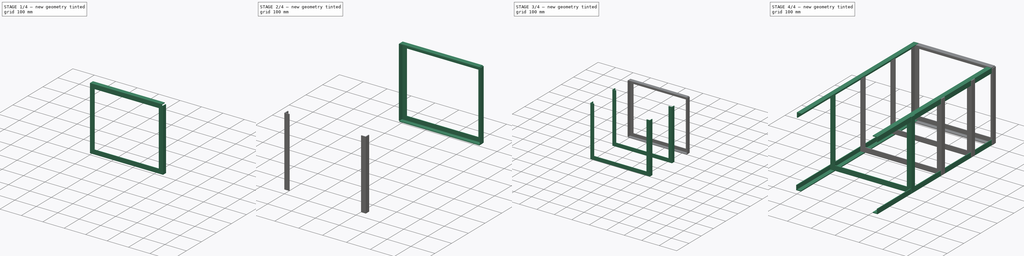
[diagram: build sequence overview — one tinted view per stage of 4, left to right]
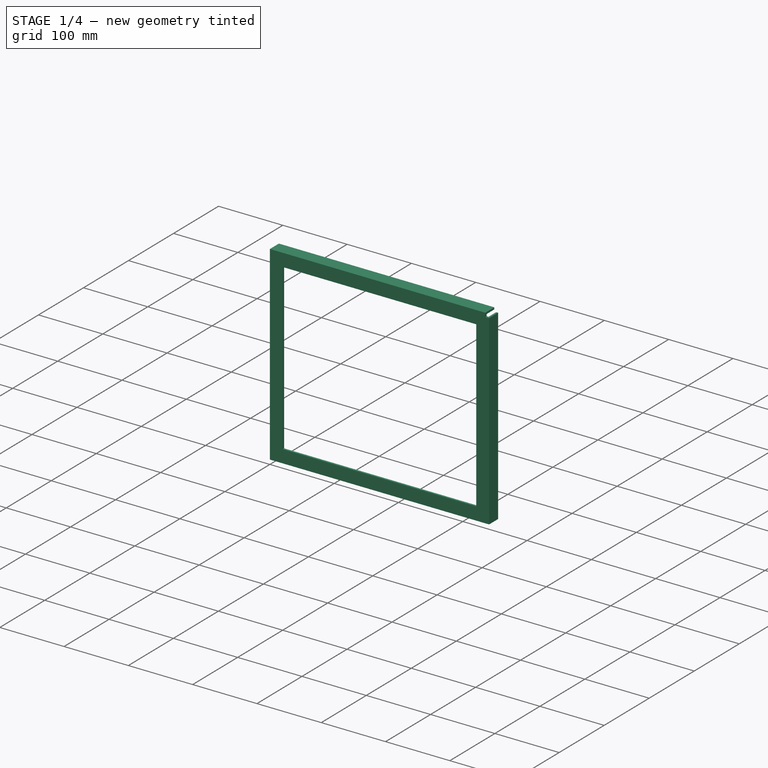
[diagram: stage 1 of 4 — iso view after this stage's code; geometry added in this stage tinted green]
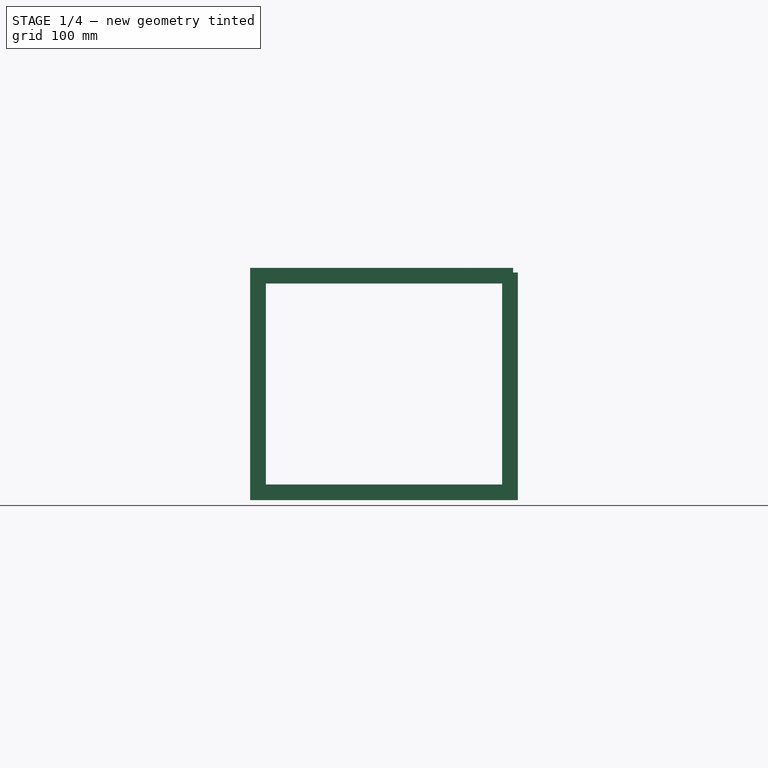
[diagram: stage 1 of 4 — front view after this stage's code; geometry added in this stage tinted green]
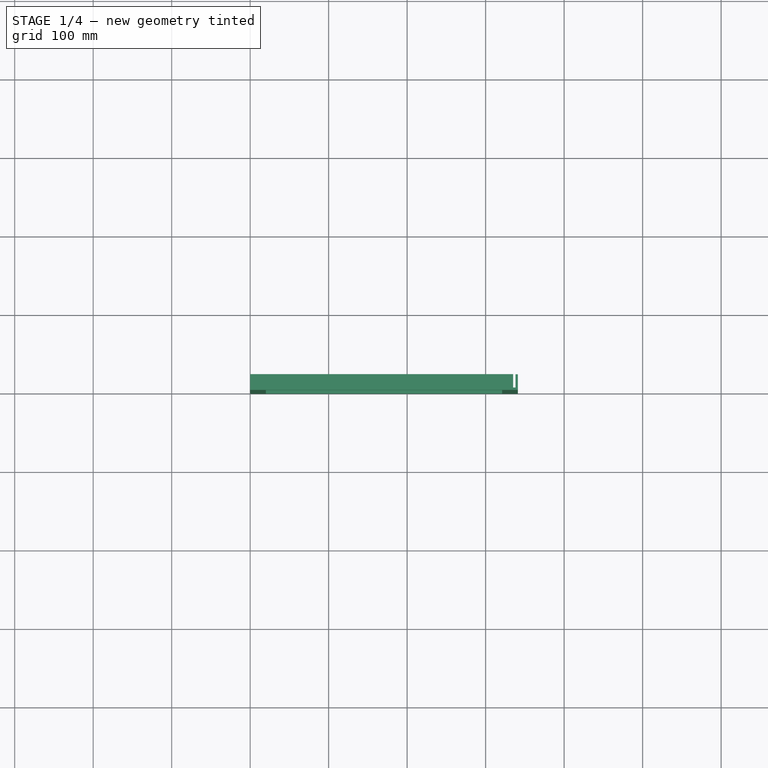
[diagram: stage 1 of 4 — top view after this stage's code; geometry added in this stage tinted green]
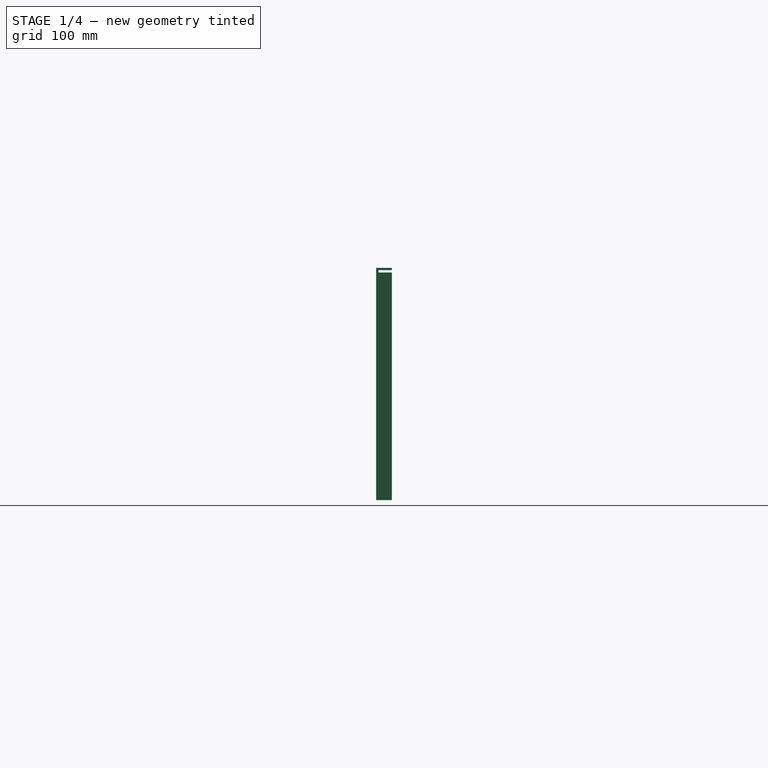
[diagram: stage 1 of 4 — right view after this stage's code; geometry added in this stage tinted green]
FCSTD DOCUMENT  (FreeCAD 0.18R16131 (Git))
Label: module2
License: All rights reserved
LicenseURL: http://en.wikipedia.org/wiki/All_rights_reserved
objects: PartDesign::FeatureBase×8, PartDesign::Body×8, Sketcher::SketchObject×5, Part::Extrusion×4, App::DocumentObjectGroup×4, TechDraw::DrawSVGTemplate×2, TechDraw::DrawPage×2, PartDesign::Pad×1, TechDraw::DrawViewPart×1
note: 27 computed .brp shape members not serialized (recipe doc carries the construction recipe); baked Part::Feature solids carry a one-line shape summary decoded from their .brp

FEATURE [PartDesign::Body] Body005  label="G56"
  Group = -> [Clone002]
  Origin = -> Origin005
  Tip = -> Clone002
FEATURE [App::DocumentObjectGroup] Group  label="grille"
  Group = -> [Body,Extrude001,Body003,Body004,Body005]
FEATURE [Sketcher::SketchObject] Sketch003
  MapMode = 5
  Support = -> [XY_Plane006]
  sketch-geometry (12):
    g0: LineSegment StartX=0 StartY=0 StartZ=0 EndX=20 EndY=0 EndZ=0
    g1: LineSegment StartX=20 StartY=0 StartZ=0 EndX=20 EndY=3 EndZ=0
    g2: LineSegment StartX=20 StartY=3 StartZ=0 EndX=3 EndY=3 EndZ=0
    g3: LineSegment StartX=3 StartY=3 StartZ=0 EndX=3 EndY=20 EndZ=0
    g4: LineSegment StartX=3 StartY=20 StartZ=0 EndX=0 EndY=20 EndZ=0
    g5: LineSegment StartX=0 StartY=20 StartZ=0 EndX=0 EndY=0 EndZ=0
    g6: LineSegment StartX=321 StartY=0 StartZ=0 EndX=341 EndY=0 EndZ=0
    g7: LineSegment StartX=341 StartY=0 StartZ=0 EndX=341 EndY=20 EndZ=0
    g8: LineSegment StartX=341 StartY=20 StartZ=0 EndX=338 EndY=20 EndZ=0
    g9: LineSegment StartX=338 StartY=20 StartZ=0 EndX=338 EndY=3 EndZ=0
    g10: LineSegment StartX=338 StartY=3 StartZ=0 EndX=321 EndY=3 EndZ=0
    g11: LineSegment StartX=321 StartY=3 StartZ=0 EndX=321 EndY=0 EndZ=0
  constraints (35):
    c: Coincident(g-1,g0)
    c: Horizontal(g0)
    c: Coincident(g0,g1)
    c: Vertical(g1)
    c: Coincident(g1,g2)
    c: Horizontal(g2)
    c: Coincident(g2,g3)
    c: Vertical(g3)
    c: Coincident(g3,g4)
    c: PointOnObject(g4,g-2)
    c: Coincident(g4,g5)
    c: Coincident(g5,g0)
    c: Horizontal(g4)
    c: DistanceX(g4,g4) = 3
    c: DistanceX(g0,g0) = 20
    c: DistanceY(g5,g5) = 20
    c: DistanceY(g1,g1) = 3
    c: PointOnObject(g6,g-1)
    c: Horizontal(g6)
    c: Coincident(g6,g7)
    c: Vertical(g7)
    c: Coincident(g7,g8)
    c: Horizontal(g8)
    c: Coincident(g8,g9)
    c: Vertical(g9)
    c: Coincident(g9,g10)
    c: Horizontal(g10)
    c: Coincident(g10,g11)
    c: Coincident(g11,g6)
    c: Vertical(g11)
    c: DistanceX(g6,g6) = 20
    c: DistanceX(g8,g8) = 3
    c: DistanceY(g11,g11) = 3
    c: DistanceY(g7,g7) = 20
    c: DistanceX(g2,g9) = 335
FEATURE [Sketcher::SketchObject] Sketch004
  MapMode = 5
  Placement = pos=(0,0,0) rot=(0.57735,0.57735,0.57735;2.0944rad)
  Support = -> [YZ_Plane006]
  sketch-geometry (12):
    g0: LineSegment StartX=0 StartY=0 StartZ=0 EndX=20 EndY=0 EndZ=0
    g1: LineSegment StartX=20 StartY=0 StartZ=0 EndX=19.754 EndY=3 EndZ=0
    g2: LineSegment StartX=19.754 StartY=3 StartZ=0 EndX=3 EndY=3 EndZ=0
    g3: LineSegment StartX=3 StartY=3 StartZ=0 EndX=3 EndY=20 EndZ=0
    g4: LineSegment StartX=3 StartY=20 StartZ=0 EndX=0 EndY=20 EndZ=0
    g5: LineSegment StartX=0 StartY=20 StartZ=0 EndX=0 EndY=0 EndZ=0
    g6: LineSegment StartX=0 StartY=296 StartZ=0 EndX=0 EndY=276 EndZ=0
    g7: LineSegment StartX=0 StartY=276 StartZ=0 EndX=3 EndY=276 EndZ=0
    g8: LineSegment StartX=3 StartY=276 StartZ=0 EndX=3 EndY=293 EndZ=0
    g9: LineSegment StartX=3 StartY=293 StartZ=0 EndX=20 EndY=293 EndZ=0
    g10: LineSegment StartX=20 StartY=293 StartZ=0 EndX=20 EndY=296 EndZ=0
    g11: LineSegment StartX=20 StartY=296 StartZ=0 EndX=0 EndY=296 EndZ=0
  constraints (34):
    c: Coincident(g-1,g0)
    c: PointOnObject(g0,g-1)
    c: Coincident(g0,g1)
    c: Coincident(g1,g2)
    c: Horizontal(g2)
    c: Coincident(g2,g3)
    c: Vertical(g3)
    c: Coincident(g3,g4)
    c: PointOnObject(g4,g-2)
    c: Coincident(g4,g5)
    c: Coincident(g5,g0)
    c: Horizontal(g4)
    c: DistanceY(g5,g5) = 20
    c: DistanceY(g1,g1) = 3
    c: DistanceX(g0,g0) = 20
    c: DistanceX(g4,g4) = 3
    c: PointOnObject(g6,g-2)
    c: Vertical(g6)
    c: Coincident(g6,g7)
    c: Horizontal(g7)
    c: Coincident(g7,g8)
    c: Vertical(g8)
    c: Coincident(g8,g9)
    c: Horizontal(g9)
    c: Coincident(g9,g10)
    c: Vertical(g10)
    c: Coincident(g10,g11)
    c: Horizontal(g11)
    c: DistanceX(g11,g11) = 20
    c: DistanceX(g7,g7) = 3
    c: DistanceY(g6,g6) = 20
    c: DistanceY(g10,g10) = 3
    c: Coincident(g6,g11)
    c: DistanceY(g2,g8) = 290
FEATURE [Part::Extrusion] Extrude002
  Base = -> Sketch003
  Dir = (0,0,1)
  DirMode = 2
  FaceMakerClass = Part::FaceMakerBullseye
  LengthFwd = 290
  LengthRev = 0
  Solid = true
  Symmetric = false
FEATURE [PartDesign::FeatureBase] BaseFeature002
  BaseFeature = -> Extrude002
FEATURE [PartDesign::Body] Body006
  BaseFeature = -> Extrude002
  Group = -> [BaseFeature002,Sketch003,Sketch004]
  Origin = -> Origin006
  Tip = -> BaseFeature002
FEATURE [Part::Extrusion] Extrude004
  Base = -> Sketch004
  Dir = (1,-2e-16,3e-16)
  DirMode = 2
  FaceMakerClass = Part::FaceMakerBullseye
  LengthFwd = 335
  LengthRev = 0
  Solid = true
  Symmetric = false
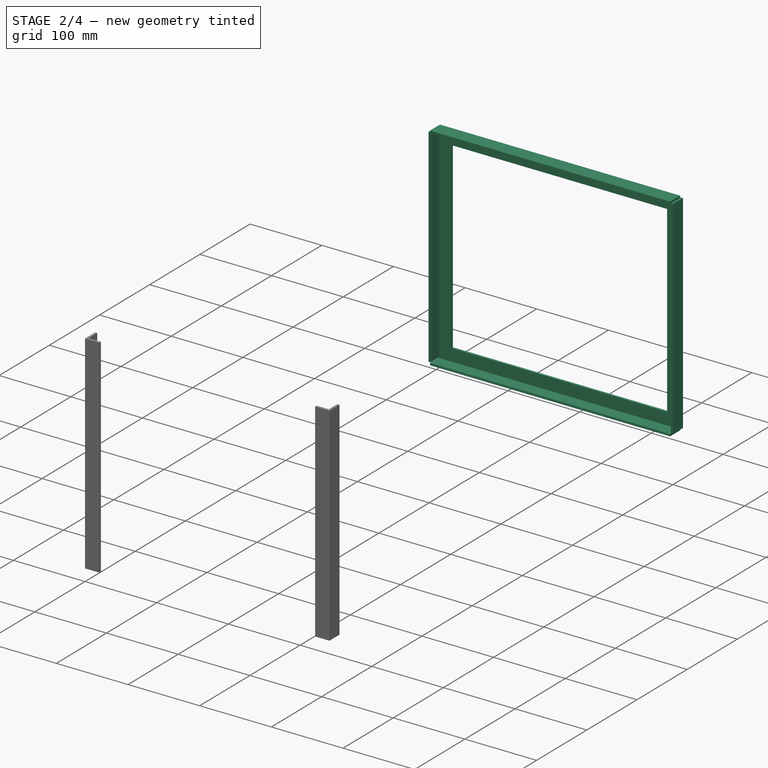
[diagram: stage 2 of 4 — iso view after this stage's code; geometry added in this stage tinted green]
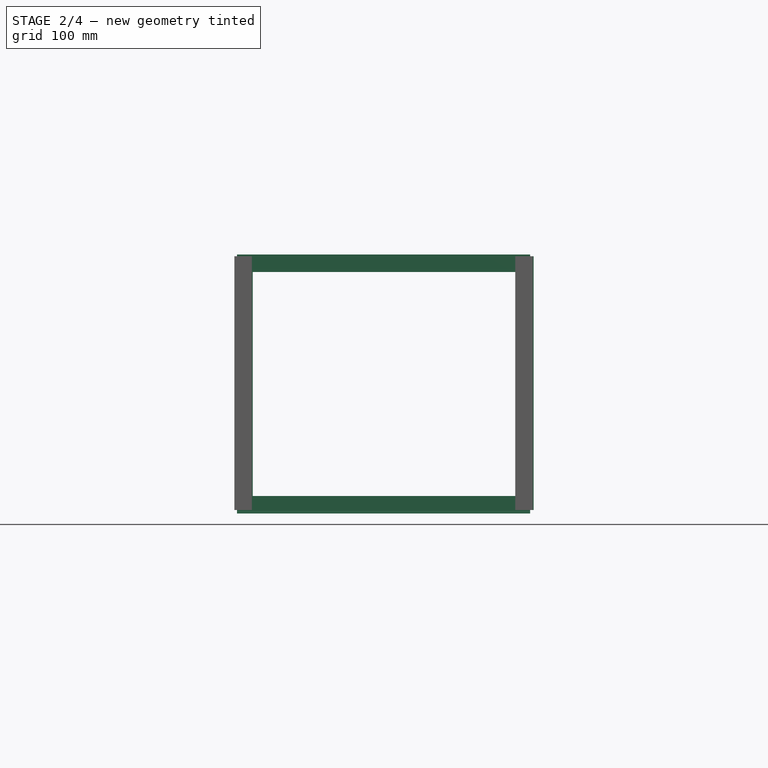
[diagram: stage 2 of 4 — front view after this stage's code; geometry added in this stage tinted green]
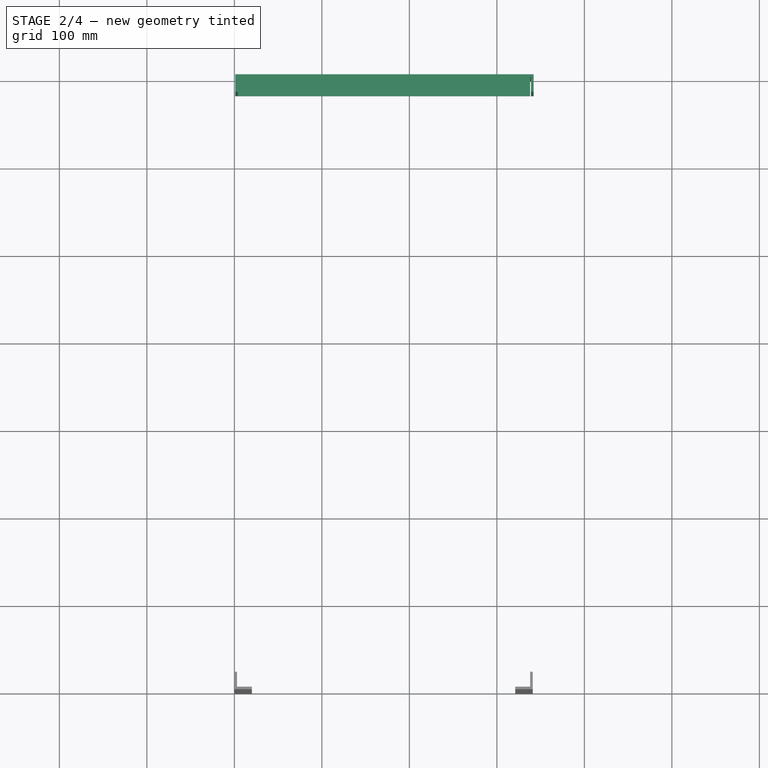
[diagram: stage 2 of 4 — top view after this stage's code; geometry added in this stage tinted green]
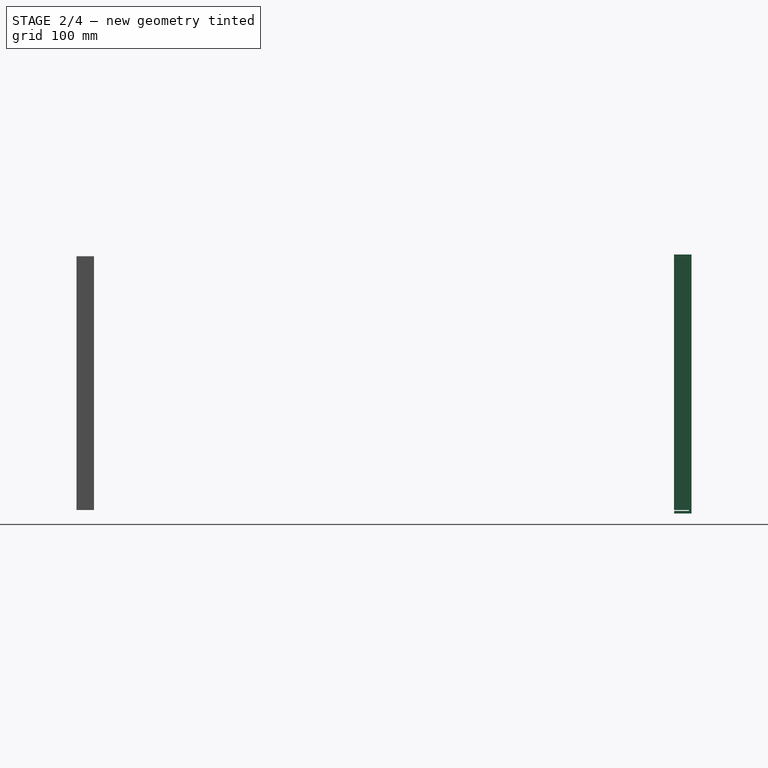
[diagram: stage 2 of 4 — right view after this stage's code; geometry added in this stage tinted green]
FEATURE [Part::Extrusion] Extrude001
  Base = -> Sketch
  Dir = (0,0,1)
  DirMode = 2
  FaceMakerClass = Part::FaceMakerBullseye
  LengthFwd = 290
  LengthRev = 0
  Solid = true
  Symmetric = false
FEATURE [App::DocumentObjectGroup] Group002  label="bas"
  Group = -> [Body006,Extrude002,Extrude004]
FEATURE [PartDesign::FeatureBase] Clone003
  BaseFeature = -> Body006
  Placement = pos=(342,703,0) rot=(0,0,1;3.14159rad)
FEATURE [PartDesign::Body] Body007
  Group = -> [Clone003]
  Origin = -> Origin007
  Tip = -> Clone003
FEATURE [PartDesign::FeatureBase] Clone004
  BaseFeature = -> Extrude004
  Placement = pos=(338,703,-4) rot=(0,0,1;3.14159rad)
FEATURE [PartDesign::Body] Body008
  Group = -> [Clone004]
  Origin = -> Origin008
  Tip = -> Clone004
FEATURE [App::DocumentObjectGroup] Group003  label="haut"
  Group = -> [Body007,Body008]
FEATURE [TechDraw::DrawSVGTemplate] Template
  EditableTexts = Designed_by_Name=Designed by Name; Drawing_number=Drawing number; FC-Date=Date; FC-SC=Scale; FC-SH=Sheet; FC-Title=Title; Subtitle=Subtitle; Weight=Weight
  Height = 210
  Orientation = 1
  Width = 297
FEATURE [TechDraw::DrawSVGTemplate] Template001
  EditableTexts = Designed_by_Name=Designed by Name; Drawing_number=Drawing number; FC-Date=Date; FC-SC=Scale; FC-SH=Sheet; FC-Title=Title; Subtitle=Subtitle; Weight=Weight
  Height = 210
  Orientation = 1
  Width = 297
FEATURE [TechDraw::DrawPage] Page001
  KeepUpdated = true
  ProjectionType = 0
  Template = -> Template001
FEATURE [TechDraw::DrawViewPart] View
  CoarseView = false
  Direction = (-0.538,0.486,0.688)
  Focus = 100
  HardHidden = false
  IsoCount = 0
  IsoHidden = false
  IsoVisible = false
  LockPosition = false
  Perspective = false
  Rotation = 21
  Scale = 0.1
  ScaleType = 0
  SeamHidden = false
  SeamVisible = false
  SmoothHidden = false
  SmoothVisible = false
  Source = -> [Body006]
  X = 192.385
  Y = 128.562
FEATURE [TechDraw::DrawPage] Page
  KeepUpdated = false
  ProjectionType = 0
  Template = -> Template
  Views = -> [View]
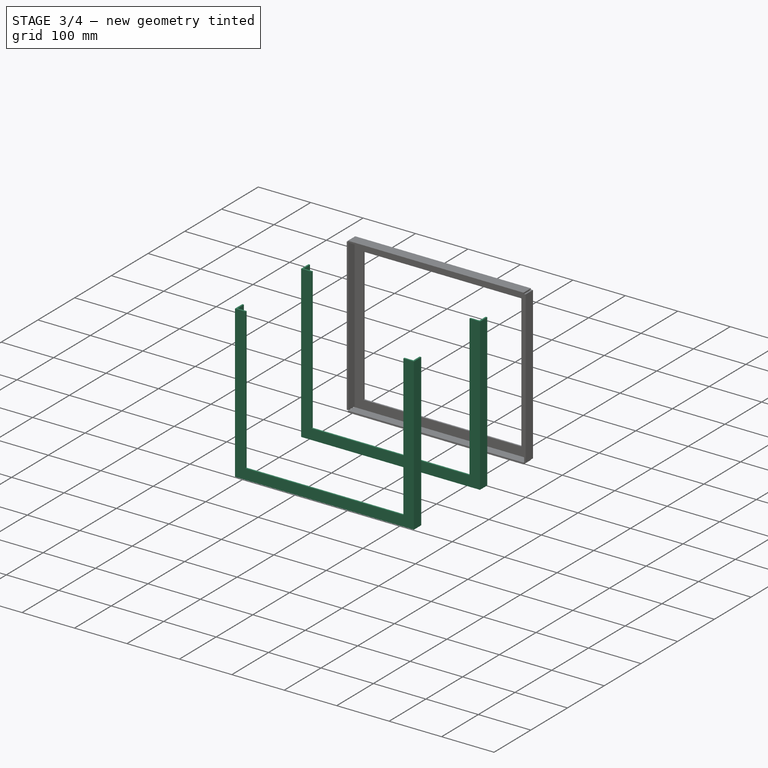
[diagram: stage 3 of 4 — iso view after this stage's code; geometry added in this stage tinted green]
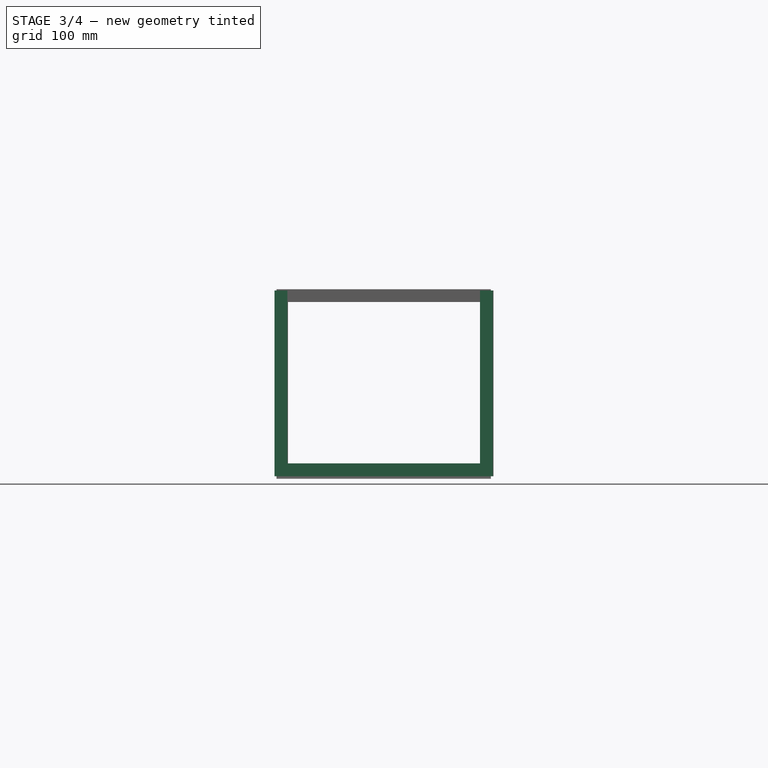
[diagram: stage 3 of 4 — front view after this stage's code; geometry added in this stage tinted green]
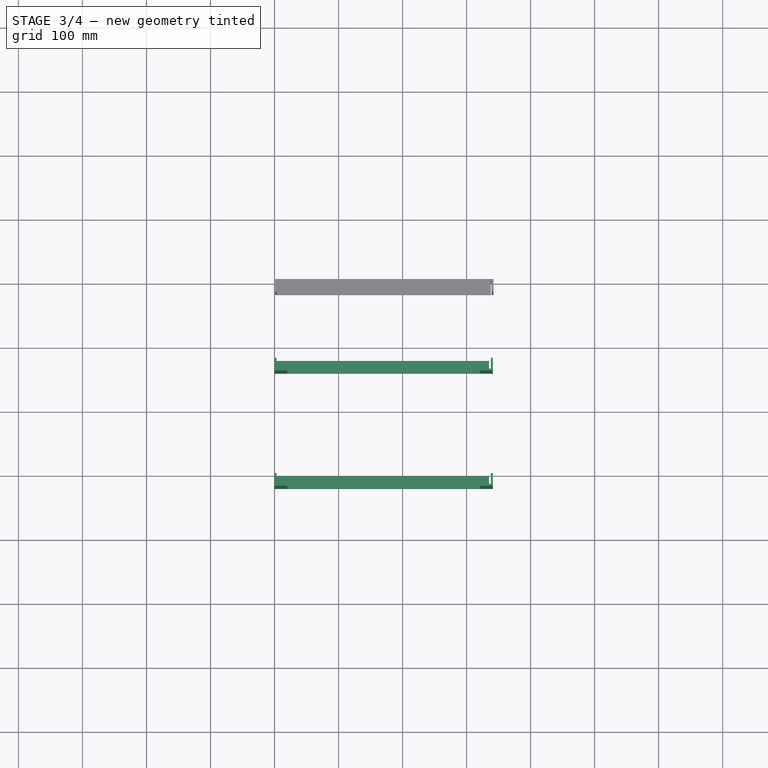
[diagram: stage 3 of 4 — top view after this stage's code; geometry added in this stage tinted green]
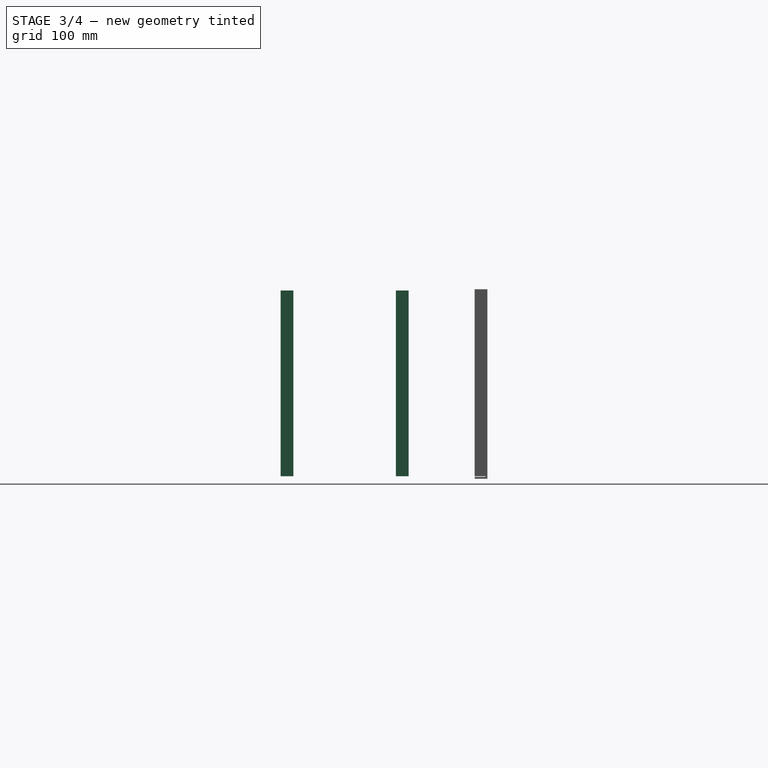
[diagram: stage 3 of 4 — right view after this stage's code; geometry added in this stage tinted green]
FEATURE [PartDesign::FeatureBase] BaseFeature
  BaseFeature = -> Extrude001
FEATURE [PartDesign::Pad] Pad001
  BaseFeature = -> BaseFeature
  Length = 335
  Length2 = 100
  Profile = -> Sketch001
  Type = 0
FEATURE [PartDesign::Body] Body003  label="G10"
  Group = -> [Clone]
  Origin = -> Origin003
  Tip = -> Clone
FEATURE [PartDesign::FeatureBase] Clone001
  BaseFeature = -> Body
  Placement = pos=(0,380,0) rot=(0,0,1;0rad)
FEATURE [PartDesign::Body] Body004  label="G38"
  Group = -> [Clone001]
  Origin = -> Origin004
  Tip = -> Clone001
FEATURE [PartDesign::FeatureBase] Clone002
  BaseFeature = -> Body
  Placement = pos=(0,560,0) rot=(0,0,1;0rad)
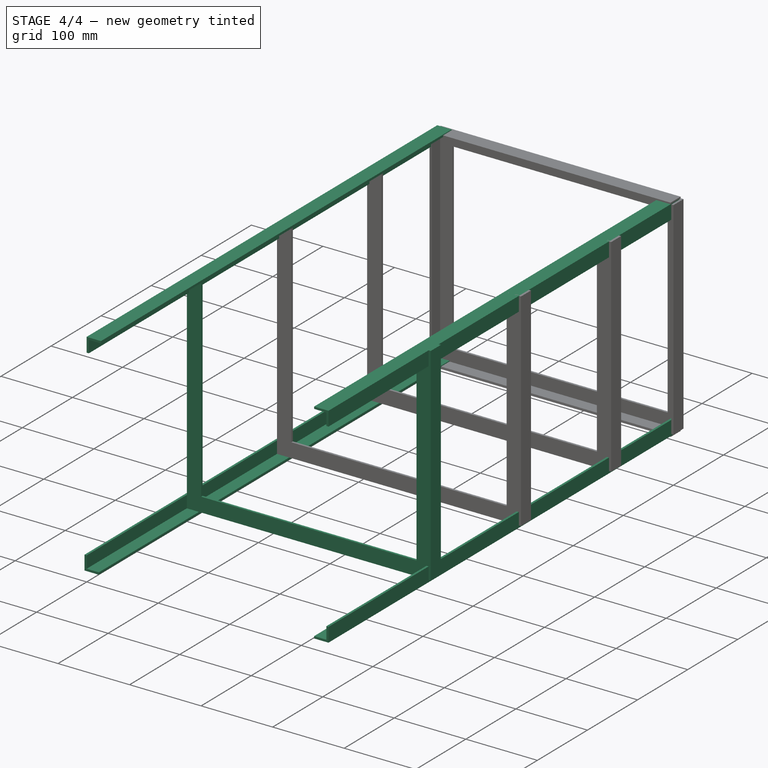
[diagram: stage 4 of 4 — iso view after this stage's code; geometry added in this stage tinted green]
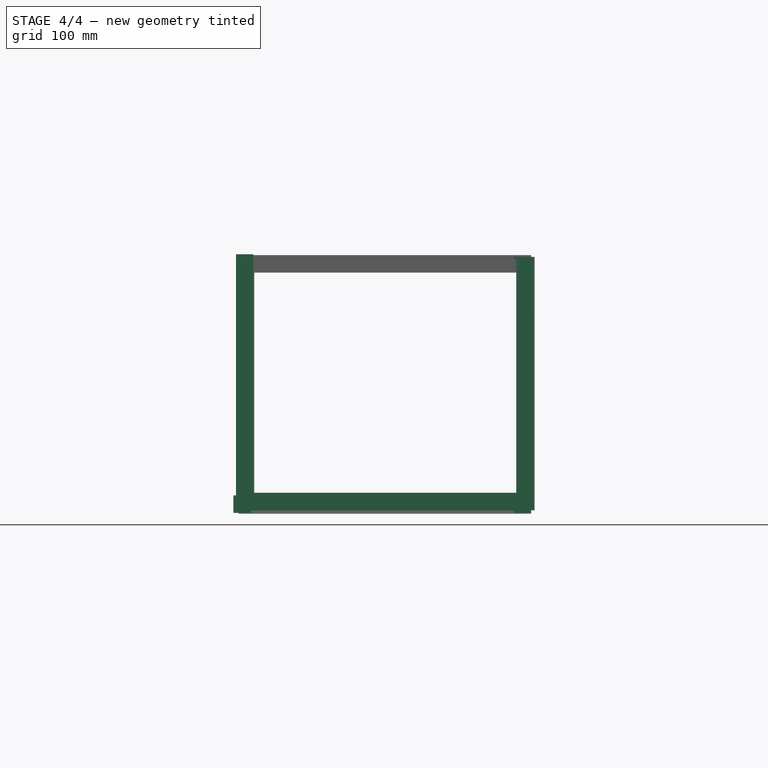
[diagram: stage 4 of 4 — front view after this stage's code; geometry added in this stage tinted green]
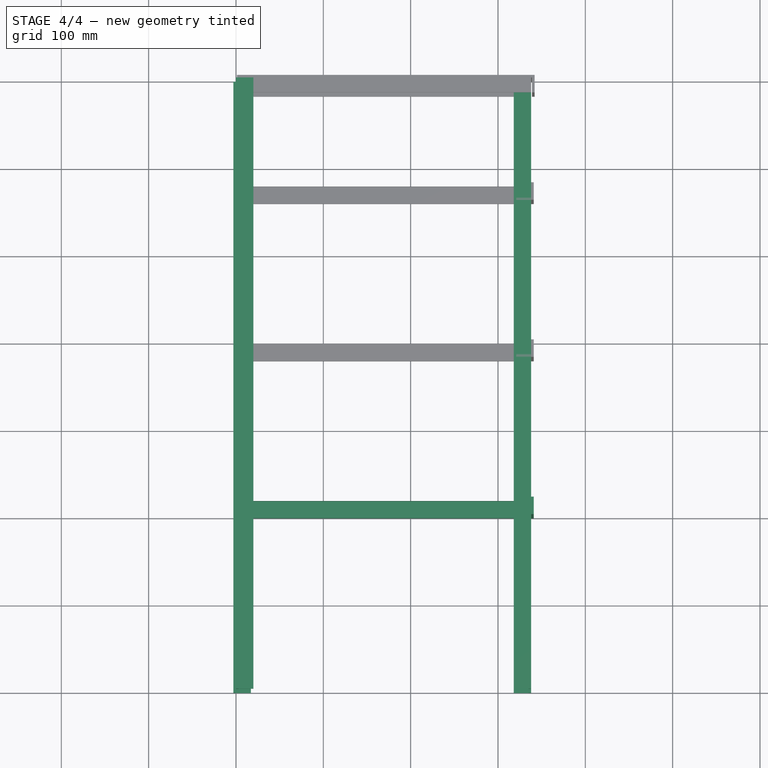
[diagram: stage 4 of 4 — top view after this stage's code; geometry added in this stage tinted green]
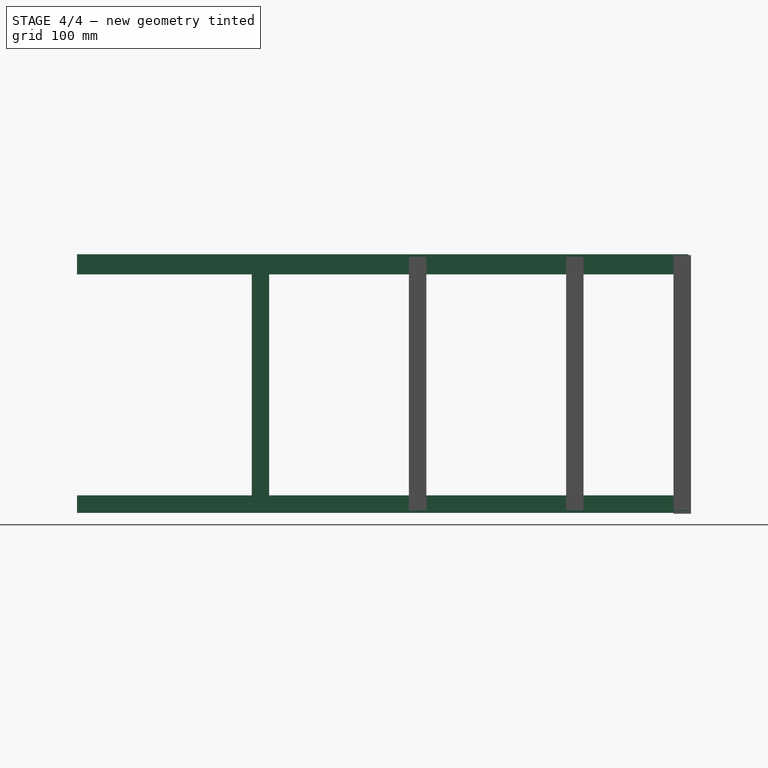
[diagram: stage 4 of 4 — right view after this stage's code; geometry added in this stage tinted green]
FEATURE [Sketcher::SketchObject] Sketch
  MapMode = 5
  Support = -> [XY_Plane]
  sketch-geometry (12):
    g0: LineSegment StartX=0 StartY=0 StartZ=0 EndX=20 EndY=0 EndZ=0
    g1: LineSegment StartX=20 StartY=0 StartZ=0 EndX=20 EndY=3 EndZ=0
    g2: LineSegment StartX=20 StartY=3 StartZ=0 EndX=3 EndY=3 EndZ=0
    g3: LineSegment StartX=3 StartY=3 StartZ=0 EndX=3 EndY=20 EndZ=0
    g4: LineSegment StartX=3 StartY=20 StartZ=0 EndX=0 EndY=20 EndZ=0
    g5: LineSegment StartX=0 StartY=20 StartZ=0 EndX=0 EndY=0 EndZ=0
    g6: LineSegment StartX=321 StartY=0 StartZ=0 EndX=341 EndY=0 EndZ=0
    g7: LineSegment StartX=341 StartY=0 StartZ=0 EndX=341 EndY=20 EndZ=0
    g8: LineSegment StartX=341 StartY=20 StartZ=0 EndX=338 EndY=20 EndZ=0
    g9: LineSegment StartX=338 StartY=20 StartZ=0 EndX=338 EndY=3 EndZ=0
    g10: LineSegment StartX=338 StartY=3 StartZ=0 EndX=321 EndY=3 EndZ=0
    g11: LineSegment StartX=321 StartY=3 StartZ=0 EndX=321 EndY=0 EndZ=0
  constraints (35):
    c: Coincident(g-1,g0)
    c: Horizontal(g0)
    c: Coincident(g0,g1)
    c: Vertical(g1)
    c: Coincident(g1,g2)
    c: Horizontal(g2)
    c: Coincident(g2,g3)
    c: Vertical(g3)
    c: Coincident(g3,g4)
    c: PointOnObject(g4,g-2)
    c: Coincident(g4,g5)
    c: Coincident(g5,g0)
    c: Horizontal(g4)
    c: DistanceX(g4,g4) = 3
    c: DistanceX(g0,g0) = 20
    c: DistanceY(g5,g5) = 20
    c: DistanceY(g1,g1) = 3
    c: PointOnObject(g6,g-1)
    c: Horizontal(g6)
    c: Coincident(g6,g7)
    c: Vertical(g7)
    c: Coincident(g7,g8)
    c: Horizontal(g8)
    c: Coincident(g8,g9)
    c: Vertical(g9)
    c: Coincident(g9,g10)
    c: Horizontal(g10)
    c: Coincident(g10,g11)
    c: Coincident(g11,g6)
    c: Vertical(g11)
    c: DistanceX(g6,g6) = 20
    c: DistanceX(g8,g8) = 3
    c: DistanceY(g11,g11) = 3
    c: DistanceY(g7,g7) = 20
    c: DistanceX(g2,g9) = 335
FEATURE [Sketcher::SketchObject] Sketch001
  MapMode = 5
  Placement = pos=(0,0,0) rot=(0.57735,0.57735,0.57735;2.0944rad)
  Support = -> [YZ_Plane]
  sketch-geometry (6):
    g0: LineSegment StartX=0 StartY=0 StartZ=0 EndX=20 EndY=0 EndZ=0
    g1: LineSegment StartX=20 StartY=0 StartZ=0 EndX=19.754 EndY=3 EndZ=0
    g2: LineSegment StartX=19.754 StartY=3 StartZ=0 EndX=3 EndY=3 EndZ=0
    g3: LineSegment StartX=3 StartY=3 StartZ=0 EndX=3 EndY=20 EndZ=0
    g4: LineSegment StartX=3 StartY=20 StartZ=0 EndX=0 EndY=20 EndZ=0
    g5: LineSegment StartX=0 StartY=20 StartZ=0 EndX=0 EndY=0 EndZ=0
  constraints (16):
    c: Coincident(g-1,g0)
    c: PointOnObject(g0,g-1)
    c: Coincident(g0,g1)
    c: Coincident(g1,g2)
    c: Horizontal(g2)
    c: Coincident(g2,g3)
    c: Vertical(g3)
    c: Coincident(g3,g4)
    c: PointOnObject(g4,g-2)
    c: Coincident(g4,g5)
    c: Coincident(g5,g0)
    c: Horizontal(g4)
    c: DistanceY(g5,g5) = 20
    c: DistanceY(g1,g1) = 3
    c: DistanceX(g0,g0) = 20
    c: DistanceX(g4,g4) = 3
FEATURE [Sketcher::SketchObject] Sketch002
  MapMode = 5
  Placement = pos=(0,0,0) rot=(1,0,0;1.5708rad)
  Support = -> [XZ_Plane002]
  sketch-geometry (27):
    g0: LineSegment StartX=0 StartY=0 StartZ=0 EndX=17 EndY=0 EndZ=0
    g1: LineSegment StartX=17 StartY=0 StartZ=0 EndX=17 EndY=-3 EndZ=0
    g2: LineSegment StartX=17 StartY=-3 StartZ=0 EndX=-3 EndY=-3 EndZ=0
    g3: LineSegment StartX=-3 StartY=-3 StartZ=0 EndX=-3 EndY=17 EndZ=0
    g4: LineSegment StartX=-3 StartY=17 StartZ=0 EndX=0 EndY=17 EndZ=0
    g5: LineSegment StartX=0 StartY=17 StartZ=0 EndX=0 EndY=0 EndZ=0
    g6: LineSegment StartX=318 StartY=0 StartZ=0 EndX=318 EndY=-3 EndZ=0
    g7: LineSegment StartX=318 StartY=-3 StartZ=0 EndX=338 EndY=-3 EndZ=0
    g8: LineSegment StartX=338 StartY=-3 StartZ=0 EndX=338 EndY=17 EndZ=0
    g9: LineSegment StartX=338 StartY=17 StartZ=0 EndX=335 EndY=17 EndZ=0
    g10: LineSegment StartX=335 StartY=17 StartZ=0 EndX=335 EndY=0 EndZ=0
    g11: LineSegment StartX=335 StartY=0 StartZ=0 EndX=318 EndY=0 EndZ=0
    g12: LineSegment StartX=0 StartY=293 StartZ=0 EndX=20 EndY=293 EndZ=0
    g13: LineSegment StartX=20 StartY=293 StartZ=0 EndX=20 EndY=290 EndZ=0
    g14: LineSegment StartX=20 StartY=290 StartZ=0 EndX=3 EndY=290 EndZ=0
    g15: LineSegment StartX=3 StartY=290 StartZ=0 EndX=3 EndY=273 EndZ=0
    g16: LineSegment StartX=3 StartY=273 StartZ=0 EndX=0 EndY=273 EndZ=0
    g17: LineSegment StartX=0 StartY=273 StartZ=0 EndX=0 EndY=293 EndZ=0
    g18: LineSegment [constr] StartX=3 StartY=290 StartZ=0 EndX=487.577 EndY=290 EndZ=0
    g19: LineSegment [constr] StartX=338 StartY=-3 StartZ=0 EndX=338 EndY=312.041 EndZ=0
    g20: GeomPoint X=338 Y=290 Z=0
    g21: LineSegment StartX=338 StartY=290 StartZ=0 EndX=318 EndY=290 EndZ=0
    g22: LineSegment StartX=318 StartY=290 StartZ=0 EndX=318 EndY=287 EndZ=0
    g23: LineSegment StartX=318 StartY=287 StartZ=0 EndX=335 EndY=287 EndZ=0
    g24: LineSegment StartX=335 StartY=287 StartZ=0 EndX=335 EndY=270 EndZ=0
    g25: LineSegment StartX=335 StartY=270 StartZ=0 EndX=338 EndY=270 EndZ=0
    g26: LineSegment StartX=338 StartY=270 StartZ=0 EndX=338 EndY=290 EndZ=0
  constraints (76):
    c: Coincident(g-1,g0)
    c: Horizontal(g0)
    c: Coincident(g0,g1)
    c: Vertical(g1)
    c: Coincident(g1,g2)
    c: Horizontal(g2)
    c: Coincident(g2,g3)
    c: Vertical(g3)
    c: Coincident(g3,g4)
    c: Horizontal(g4)
    c: Coincident(g4,g5)
    c: Coincident(g5,g0)
    c: Vertical(g5)
    c: DistanceY(g3,g3) = 20
    c: DistanceY(g1,g1) = 3
    c: DistanceX(g4,g4) = 3
    c: DistanceX(g2,g2) = 20
    c: PointOnObject(g6,g-1)
    c: Vertical(g6)
    c: Coincident(g6,g7)
    c: Horizontal(g7)
    c: Coincident(g7,g8)
    c: Vertical(g8)
    c: Coincident(g8,g9)
    c: Horizontal(g9)
    c: Coincident(g9,g10)
    c: PointOnObject(g10,g-1)
    c: Vertical(g10)
    c: Coincident(g10,g11)
    c: Coincident(g11,g6)
    c: DistanceX(g9,g9) = 3
    c: DistanceX(g7,g7) = 20
    c: DistanceY(g8,g8) = 20
    c: DistanceY(g6,g6) = 3
    c: DistanceX(g0,g10) = 335
    c: PointOnObject(g12,g-2)
    c: Horizontal(g12)
    c: Coincident(g12,g13)
    c: Coincident(g13,g14)
    c: Horizontal(g14)
    c: Coincident(g14,g15)
    c: Vertical(g15)
    c: Coincident(g15,g16)
    c: Horizontal(g16)
    c: Coincident(g16,g17)
    c: Vertical(g17)
    c: Coincident(g12,g17)
    c: Vertical(g13)
    c: DistanceY(g13,g13) = 3
    c: DistanceY(g17,g17) = 20
    c: DistanceX(g16,g16) = 3
    c: DistanceX(g12,g12) = 20
    c: DistanceY(g0,g14) = 290
    c: Coincident(g18,g14)
    c: Horizontal(g18)
    c: Vertical(g19)
    c: PointOnObject(g20,g18)
    c: PointOnObject(g20,g19)
    c: Coincident(g19,g7)
    c: Coincident(g21,g20)
    c: Horizontal(g21)
    c: Coincident(g21,g22)
    c: Vertical(g22)
    c: Coincident(g22,g23)
    c: Horizontal(g23)
    c: Coincident(g23,g24)
    c: Vertical(g24)
    c: PointOnObject(g25,g19)
    c: Coincident(g25,g26)
    c: Coincident(g26,g21)
    c: Horizontal(g25)
    c: Coincident(g24,g25)
    c: DistanceX(g25,g25) = 3
    c: DistanceX(g21,g21) = 20
    c: DistanceY(g22,g22) = 3
    c: DistanceY(g26,g26) = 20
FEATURE [Part::Extrusion] Extrude
  Base = -> Sketch002
  Dir = (0,-1,2e-16)
  DirMode = 2
  FaceMakerClass = Part::FaceMakerBullseye
  LengthFwd = -700
  LengthRev = 0
  Solid = true
  Symmetric = false
FEATURE [PartDesign::Body] Body
  BaseFeature = -> Extrude001
  Group = -> [BaseFeature,Sketch,Sketch001,Pad001]
  Origin = -> Origin
  Tip = -> Pad001
FEATURE [PartDesign::FeatureBase] BaseFeature001
  BaseFeature = -> Extrude
FEATURE [PartDesign::Body] Body002
  BaseFeature = -> Extrude
  Group = -> [BaseFeature001,Sketch002]
  Origin = -> Origin002
  Tip = -> BaseFeature001
FEATURE [App::DocumentObjectGroup] Group001  label="corp"
  Group = -> [Body002,Extrude]
FEATURE [PartDesign::FeatureBase] Clone
  BaseFeature = -> Body
  Placement = pos=(0,200,0) rot=(0,0,1;0rad)
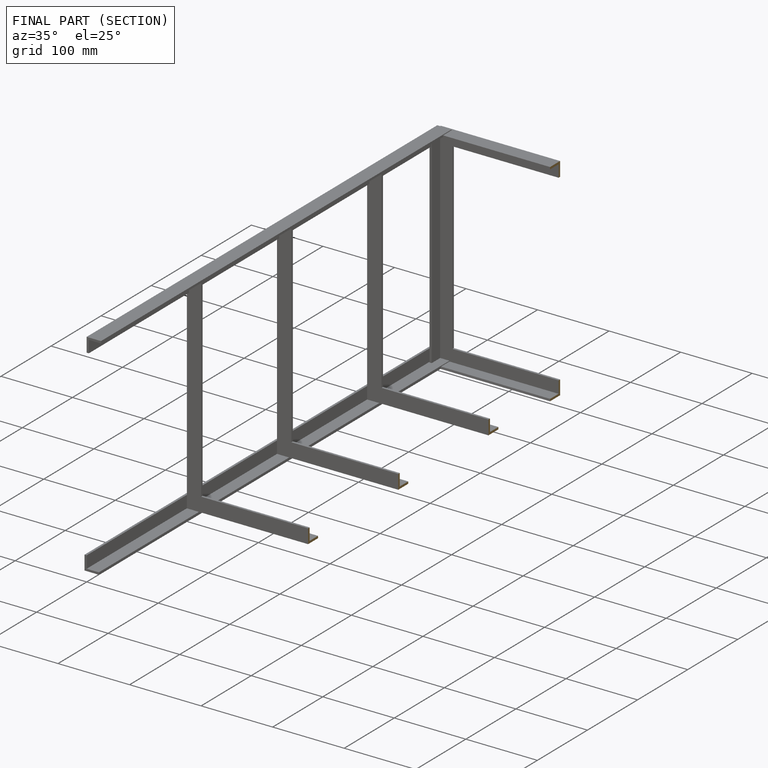
[diagram: finished part — half-section view (interior)]
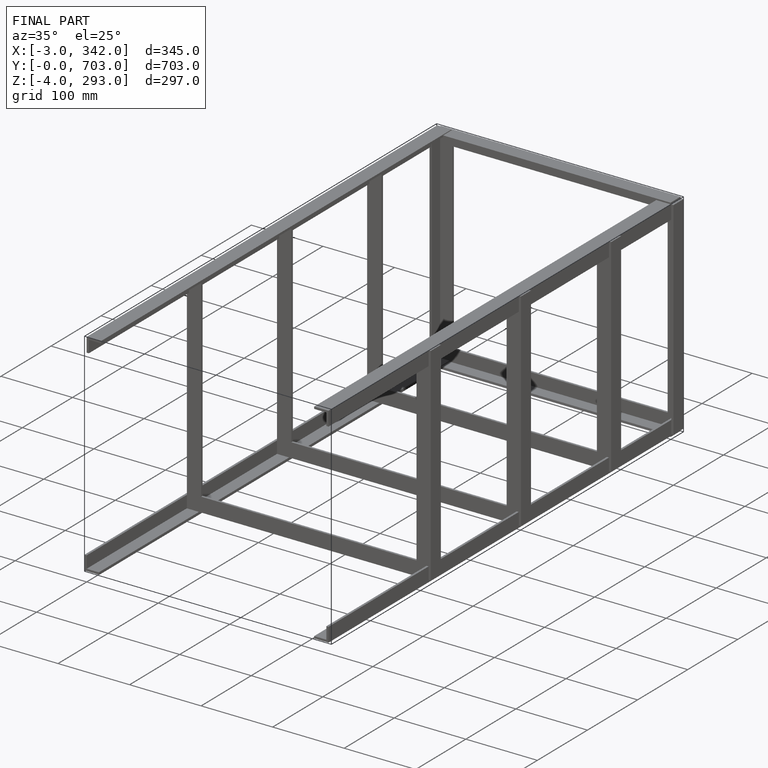
[diagram: finished part — iso view with bounding-box wireframe]
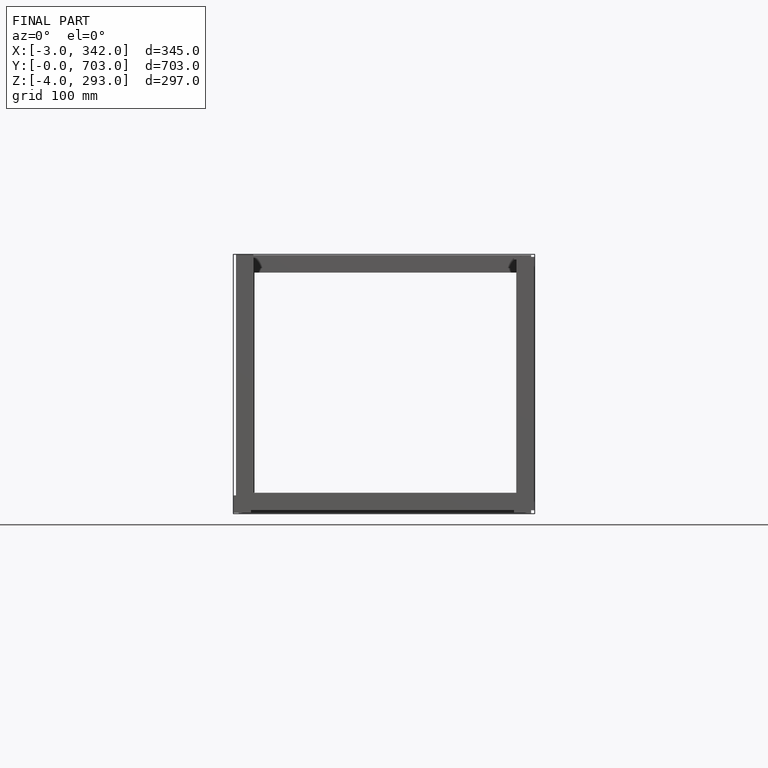
[diagram: finished part — front view with bounding-box wireframe]
